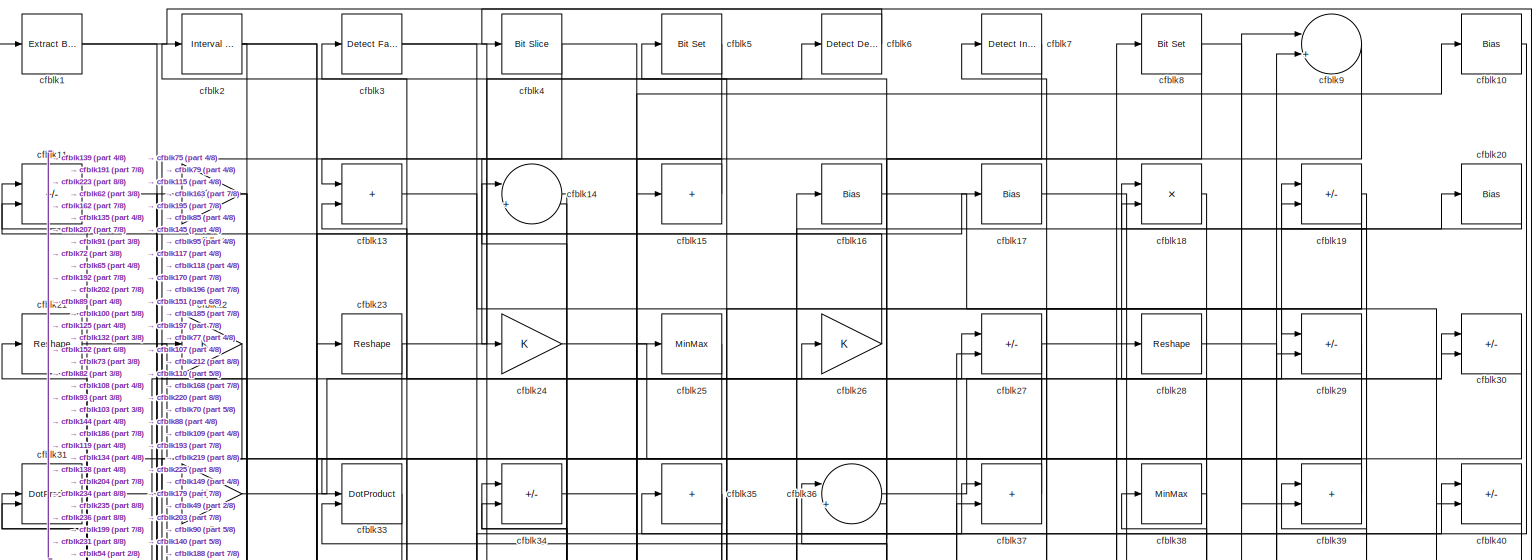
[diagram: root canvas - part 1/8, full width, top band]
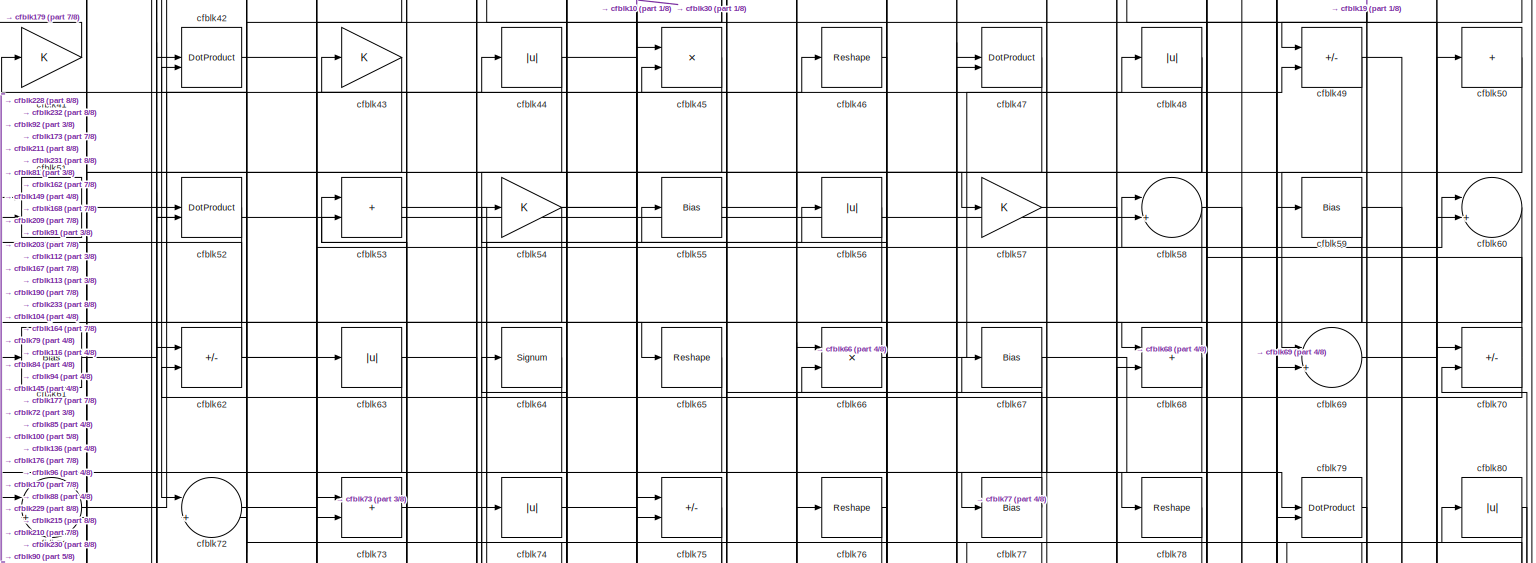
[diagram: root canvas - part 2/8, full width, top band]
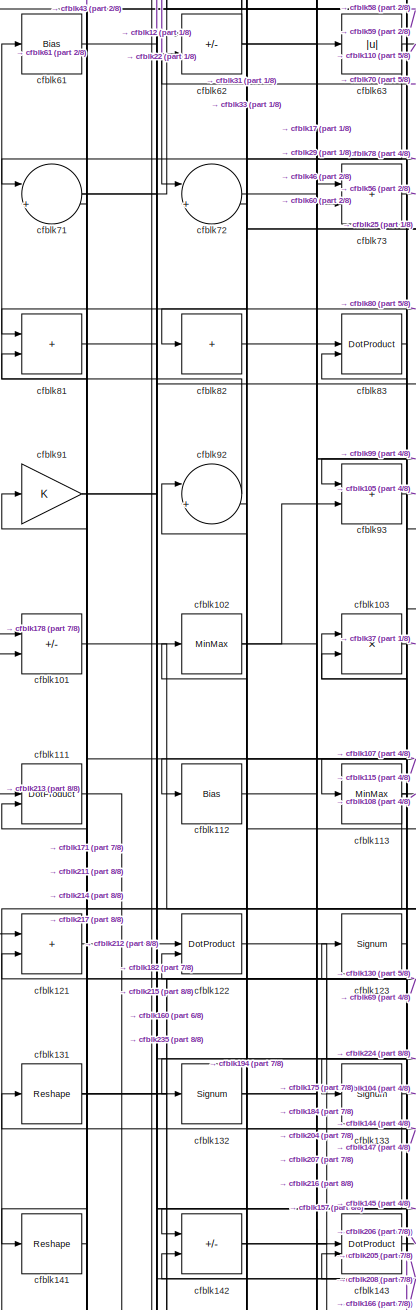
[diagram: root canvas - part 3/8, middle left region]
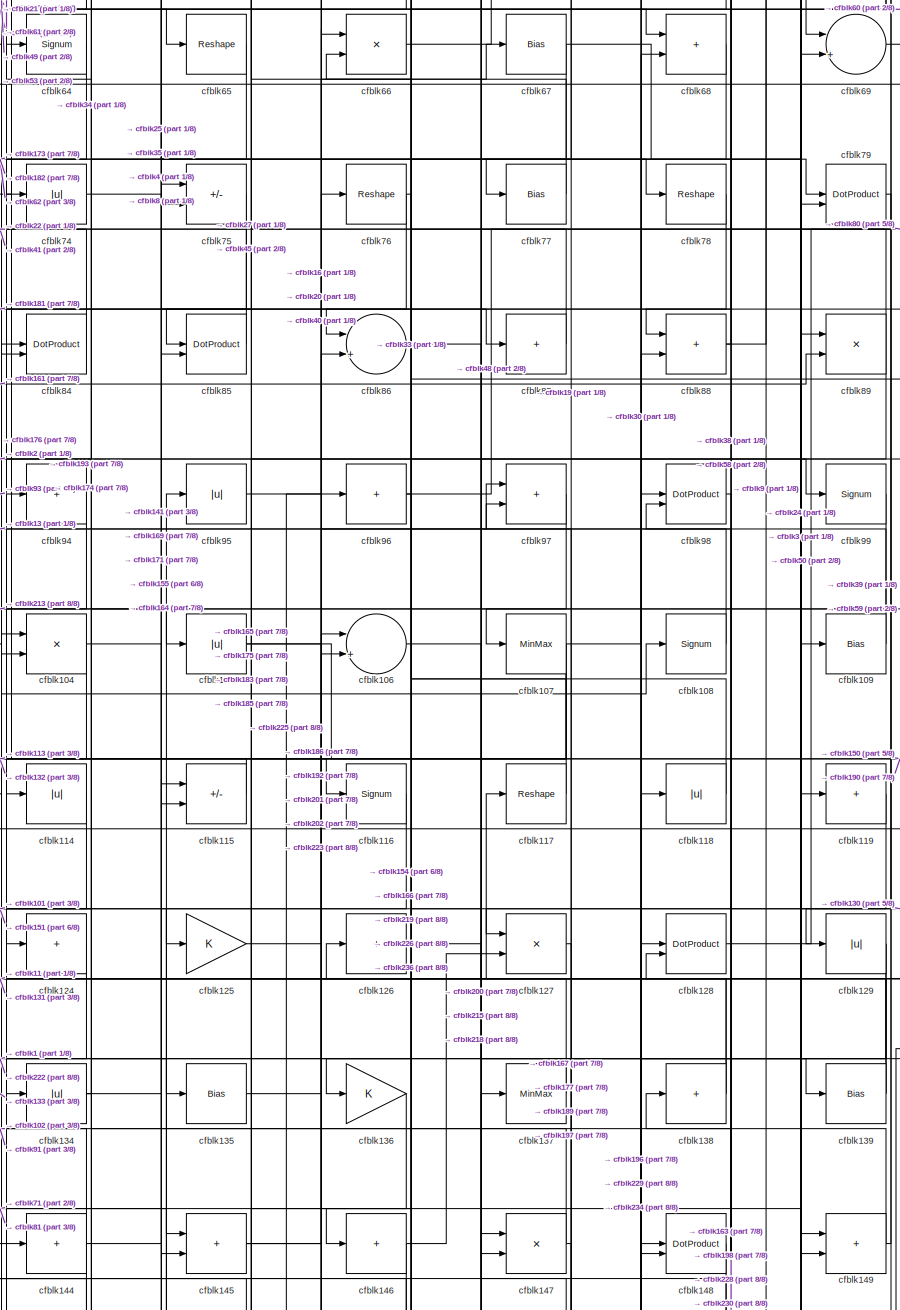
[diagram: root canvas - part 4/8, central region]
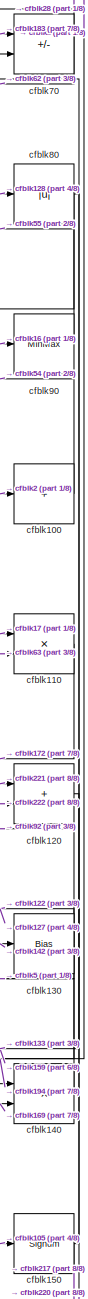
[diagram: root canvas - part 5/8, middle right region]
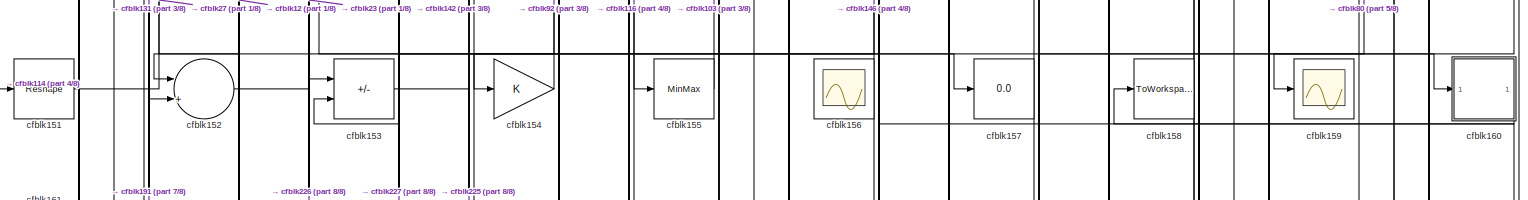
[diagram: root canvas - part 6/8, full width, middle band]
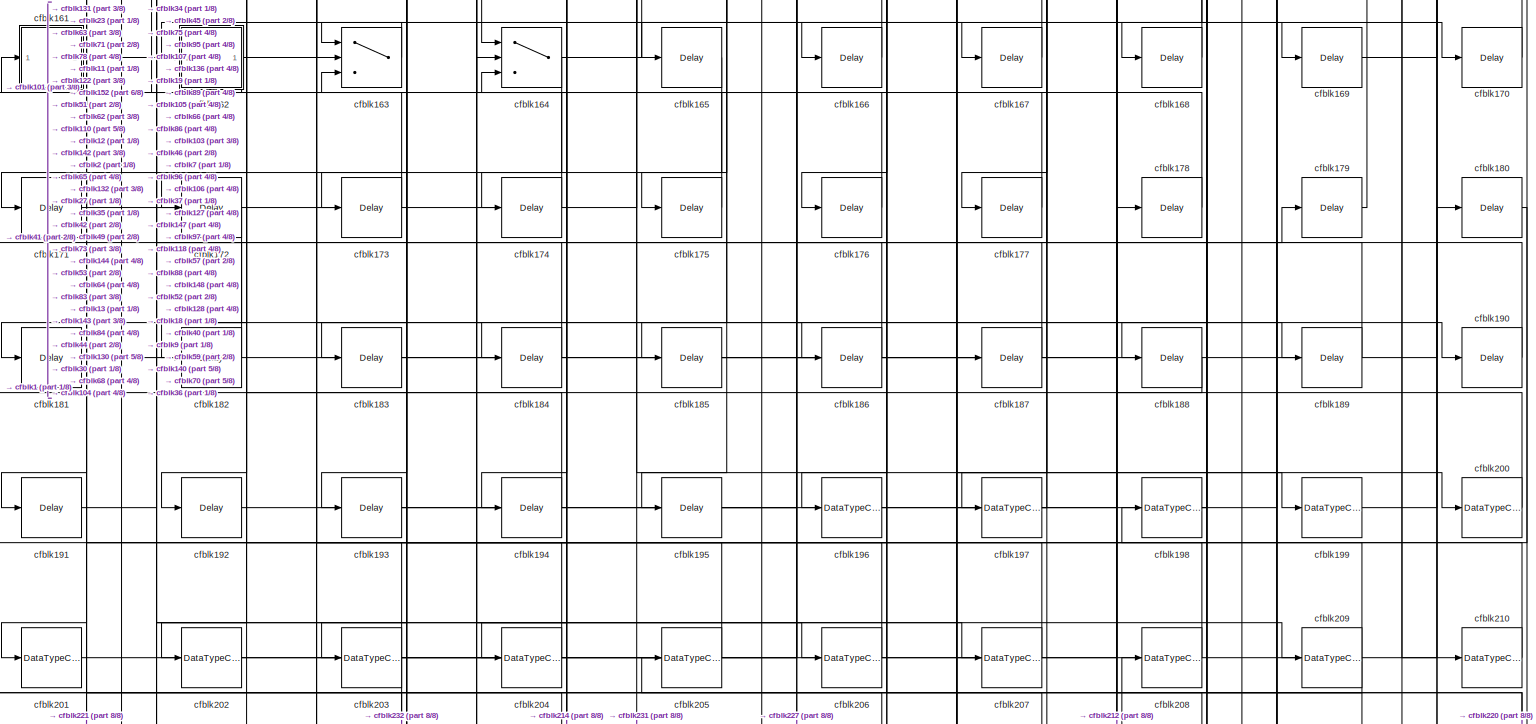
[diagram: root canvas - part 7/8, full width, bottom band]
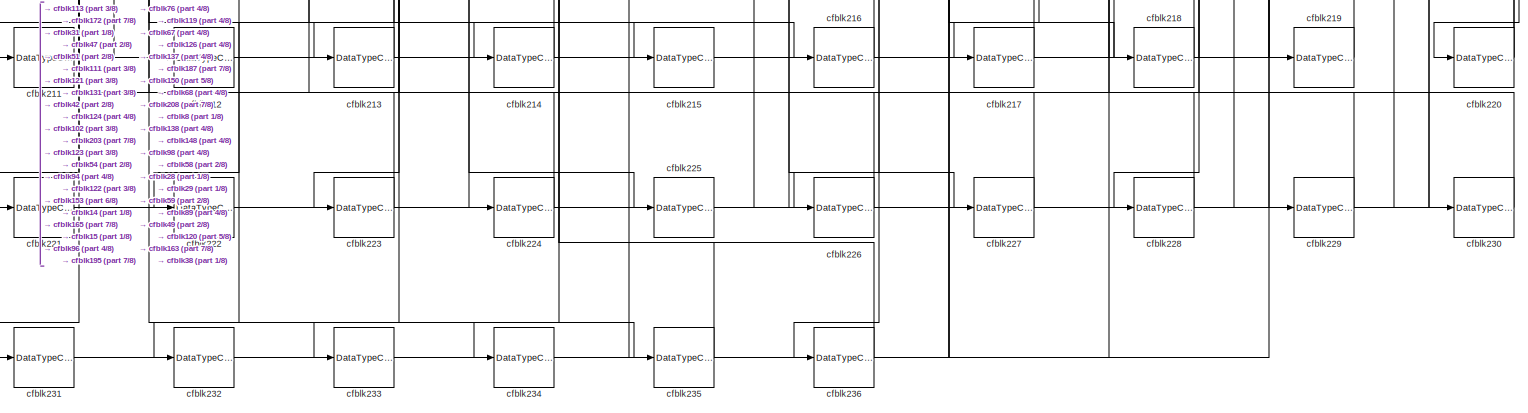
[diagram: root canvas - part 8/8, full width, bottom band]
MODEL slx_cafb1818231c
KIND model
CONFIG AbsTol = auto
CONFIG EnableMultiTasking = off
CONFIG FixedStep = auto
CONFIG MaxStep = auto
CONFIG MinStep = auto
CONFIG RelTol = 1e-3
CONFIG SampleTimeConstraint = Unconstrained
CONFIG SolverName = VariableStepAuto
CONFIG StartTime = 0.0
CONFIG StopTime = 10.0
BLOCK [Reference] cfblk1  REF=simulink/Logic and Bit
Operations/Extract Bits
  LibrarySourceBlock = hdlsllib/Logic and Bit\nOperations/Extract Bits
  SourceBlock = simulink/Logic and Bit\nOperations/Extract Bits
  SourceType = Extract Bits
BLOCK [Bias] cfblk10
  Bias = 0.0
  SaturateOnIntegerOverflow = off
BLOCK [Sum] cfblk100
  IconShape = rectangular
  Inputs = +
BLOCK [Sum] cfblk101
  IconShape = rectangular
  Inputs = +-
BLOCK [MinMax] cfblk102
BLOCK [Product] cfblk103
  Inputs = */
  RndMeth = Zero
  SaturateOnIntegerOverflow = on
BLOCK [Product] cfblk104
  Inputs = */
  RndMeth = Zero
  SaturateOnIntegerOverflow = on
BLOCK [Abs] cfblk105
  SaturateOnIntegerOverflow = off
BLOCK [Sum] cfblk106
  Inputs = |++
BLOCK [MinMax] cfblk107
BLOCK [Signum] cfblk108
BLOCK [Bias] cfblk109
  Bias = 0.0
  SaturateOnIntegerOverflow = off
BLOCK [Sum] cfblk11
  IconShape = rectangular
  Inputs = +-
BLOCK [Product] cfblk110
  Inputs = */
  RndMeth = Zero
  SaturateOnIntegerOverflow = on
BLOCK [DotProduct] cfblk111
  OutDataTypeStr = Inherit: Inherit via internal rule
BLOCK [Bias] cfblk112
  Bias = 0.0
  SaturateOnIntegerOverflow = off
BLOCK [MinMax] cfblk113
BLOCK [Abs] cfblk114
  SaturateOnIntegerOverflow = off
BLOCK [Sum] cfblk115
  IconShape = rectangular
  Inputs = +-
BLOCK [Signum] cfblk116
BLOCK [Reshape] cfblk117
BLOCK [Abs] cfblk118
  SaturateOnIntegerOverflow = off
BLOCK [Sum] cfblk119
  IconShape = rectangular
  Inputs = +
BLOCK [Gain] cfblk12
BLOCK [Sum] cfblk120
  IconShape = rectangular
BLOCK [Sum] cfblk121
  IconShape = rectangular
BLOCK [DotProduct] cfblk122
  OutDataTypeStr = Inherit: Inherit via internal rule
BLOCK [Signum] cfblk123
BLOCK [Sum] cfblk124
  IconShape = rectangular
  Inputs = +
BLOCK [Gain] cfblk125
BLOCK [Sum] cfblk126
  IconShape = rectangular
  Inputs = +
BLOCK [Product] cfblk127
  Inputs = */
  RndMeth = Zero
  SaturateOnIntegerOverflow = on
BLOCK [DotProduct] cfblk128
  OutDataTypeStr = Inherit: Inherit via internal rule
BLOCK [Abs] cfblk129
  SaturateOnIntegerOverflow = off
BLOCK [Sum] cfblk13
  IconShape = rectangular
BLOCK [Bias] cfblk130
  Bias = 0.0
  SaturateOnIntegerOverflow = off
BLOCK [Reshape] cfblk131
BLOCK [Signum] cfblk132
BLOCK [Signum] cfblk133
BLOCK [Abs] cfblk134
  SaturateOnIntegerOverflow = off
BLOCK [Bias] cfblk135
  Bias = 0.0
  SaturateOnIntegerOverflow = off
BLOCK [Gain] cfblk136
BLOCK [MinMax] cfblk137
BLOCK [Sum] cfblk138
  IconShape = rectangular
  Inputs = +
BLOCK [Bias] cfblk139
  Bias = 0.0
  SaturateOnIntegerOverflow = off
BLOCK [Sum] cfblk14
  Inputs = |++
BLOCK [Product] cfblk140
  Inputs = */
  RndMeth = Zero
  SaturateOnIntegerOverflow = on
BLOCK [Reshape] cfblk141
BLOCK [Sum] cfblk142
  IconShape = rectangular
  Inputs = +-
BLOCK [DotProduct] cfblk143
  OutDataTypeStr = Inherit: Inherit via internal rule
BLOCK [Sum] cfblk144
  IconShape = rectangular
  Inputs = +
BLOCK [Sum] cfblk145
  IconShape = rectangular
BLOCK [Sum] cfblk146
  IconShape = rectangular
  Inputs = +
BLOCK [Product] cfblk147
  Inputs = */
  RndMeth = Zero
  SaturateOnIntegerOverflow = on
BLOCK [DotProduct] cfblk148
  OutDataTypeStr = Inherit: Inherit via internal rule
BLOCK [Sum] cfblk149
  IconShape = rectangular
BLOCK [Sum] cfblk15
  IconShape = rectangular
  Inputs = +
BLOCK [Signum] cfblk150
BLOCK [Reshape] cfblk151
BLOCK [Sum] cfblk152
  Inputs = |++
BLOCK [Sum] cfblk153
  IconShape = rectangular
  Inputs = +-
BLOCK [Gain] cfblk154
BLOCK [MinMax] cfblk155
BLOCK [Scope] cfblk156
  Floating = on
  NumInputPorts = 1
  ScopeSpecificationString = Simulink.scopes.TimeScopeBlockCfg('CurrentConfiguration', extmgr.ConfigurationSet(extmgr.Configuration('Core','General UI',true,'FigureColor',[0.156862745098039 0.156862745098039 0.156862745098039]),extmgr.Configuration('Core','Source UI',true),extmgr.Configuration('Sources','WiredSimulink',true,'DataLoggingVariableName','ScopeData1','DataLoggingSaveFormat','StructureWithTime','DataLoggingLimitDat...<+2713ch>
BLOCK [Display] cfblk157
  Decimation = 1
BLOCK [ToWorkspace] cfblk158
  MaxDataPoints = inf
  SampleTime = -1
  SaveFormat = Timeseries
  VariableName = simout
BLOCK [Scope] cfblk159
  Floating = off
  NumInputPorts = 1
  ScopeSpecificationString = Simulink.scopes.TimeScopeBlockCfg('CurrentConfiguration', extmgr.ConfigurationSet(extmgr.Configuration('Core','General UI',true),extmgr.Configuration('Core','Source UI',true),extmgr.Configuration('Sources','WiredSimulink',true,'DataLoggingVariableName','ScopeData2','DataLoggingSaveFormat','Array','DataLoggingLimitDataPoints',true,'DataLoggingDecimation','1'),extmgr.Configuration('Visuals','Time Do...<+868ch>
BLOCK [Bias] cfblk16
  Bias = 0.0
  SaturateOnIntegerOverflow = off
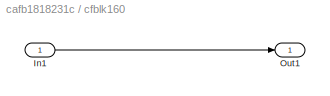
BLOCK [SubSystem] cfblk160
  LibrarySourceBlock = hdlsllib/Ports &\nSubsystems/Subsystem
BLOCK [Inport] cfblk160/In1
BLOCK [Outport] cfblk160/Out1
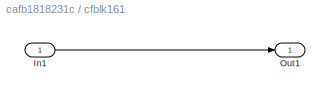
BLOCK [SubSystem] cfblk161
  LibrarySourceBlock = hdlsllib/Ports &\nSubsystems/Subsystem
BLOCK [Inport] cfblk161/In1
BLOCK [Outport] cfblk161/Out1
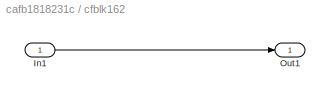
BLOCK [SubSystem] cfblk162
  LibrarySourceBlock = hdlsllib/Ports &\nSubsystems/Subsystem
BLOCK [Inport] cfblk162/In1
BLOCK [Outport] cfblk162/Out1
BLOCK [Switch] cfblk163
  InputSameDT = off
  SaturateOnIntegerOverflow = off
BLOCK [Switch] cfblk164
  InputSameDT = off
  SaturateOnIntegerOverflow = off
BLOCK [Delay] cfblk165
  InputPortMap = u0
  SampleTime = 1
BLOCK [Delay] cfblk166
  InputPortMap = u0
  SampleTime = 1
BLOCK [Delay] cfblk167
  InputPortMap = u0
  SampleTime = 1
BLOCK [Delay] cfblk168
  InputPortMap = u0
  SampleTime = 1
BLOCK [Delay] cfblk169
  InputPortMap = u0
  SampleTime = 1
BLOCK [Bias] cfblk17
  Bias = 0.0
  SaturateOnIntegerOverflow = off
BLOCK [Delay] cfblk170
  InputPortMap = u0
  SampleTime = 1
BLOCK [Delay] cfblk171
  InputPortMap = u0
  SampleTime = 1
BLOCK [Delay] cfblk172
  InputPortMap = u0
  SampleTime = 1
BLOCK [Delay] cfblk173
  InputPortMap = u0
  SampleTime = 1
BLOCK [Delay] cfblk174
  InputPortMap = u0
  SampleTime = 1
BLOCK [Delay] cfblk175
  InputPortMap = u0
  SampleTime = 1
BLOCK [Delay] cfblk176
  InputPortMap = u0
  SampleTime = 1
BLOCK [Delay] cfblk177
  InputPortMap = u0
  SampleTime = 1
BLOCK [Delay] cfblk178
  InputPortMap = u0
  SampleTime = 1
BLOCK [Delay] cfblk179
  InputPortMap = u0
  SampleTime = 1
BLOCK [Product] cfblk18
  Inputs = */
  RndMeth = Zero
  SaturateOnIntegerOverflow = on
BLOCK [Delay] cfblk180
  InputPortMap = u0
  SampleTime = 1
BLOCK [Delay] cfblk181
  InputPortMap = u0
  SampleTime = 1
BLOCK [Delay] cfblk182
  InputPortMap = u0
  SampleTime = 1
BLOCK [Delay] cfblk183
  InputPortMap = u0
  SampleTime = 1
BLOCK [Delay] cfblk184
  InputPortMap = u0
  SampleTime = 1
BLOCK [Delay] cfblk185
  InputPortMap = u0
  SampleTime = 1
BLOCK [Delay] cfblk186
  InputPortMap = u0
  SampleTime = 1
BLOCK [Delay] cfblk187
  InputPortMap = u0
  SampleTime = 1
BLOCK [Delay] cfblk188
  InputPortMap = u0
  SampleTime = 1
BLOCK [Delay] cfblk189
  InputPortMap = u0
  SampleTime = 1
BLOCK [Sum] cfblk19
  IconShape = rectangular
  Inputs = +-
BLOCK [Delay] cfblk190
  InputPortMap = u0
  SampleTime = 1
BLOCK [Delay] cfblk191
  InputPortMap = u0
  SampleTime = 1
BLOCK [Delay] cfblk192
  InputPortMap = u0
  SampleTime = 1
BLOCK [Delay] cfblk193
  InputPortMap = u0
  SampleTime = 1
BLOCK [Delay] cfblk194
  InputPortMap = u0
  SampleTime = 1
BLOCK [Delay] cfblk195
  InputPortMap = u0
  SampleTime = 1
BLOCK [DataTypeConversion] cfblk196
  OutDataTypeStr = uint8
  RndMeth = Floor
  SaturateOnIntegerOverflow = off
BLOCK [DataTypeConversion] cfblk197
  OutDataTypeStr = uint8
  RndMeth = Floor
  SaturateOnIntegerOverflow = off
BLOCK [DataTypeConversion] cfblk198
  OutDataTypeStr = uint8
  RndMeth = Floor
  SaturateOnIntegerOverflow = off
BLOCK [DataTypeConversion] cfblk199
  OutDataTypeStr = uint8
  RndMeth = Floor
  SaturateOnIntegerOverflow = off
BLOCK [Reference] cfblk2  REF=hdlsllib/Logic and Bit
Operations/Interval Test
  SourceBlock = hdlsllib/Logic and Bit\nOperations/Interval Test
  SourceType = Interval Test
BLOCK [Bias] cfblk20
  Bias = 0.0
  SaturateOnIntegerOverflow = off
BLOCK [DataTypeConversion] cfblk200
  OutDataTypeStr = uint8
  RndMeth = Floor
  SaturateOnIntegerOverflow = off
BLOCK [DataTypeConversion] cfblk201
  OutDataTypeStr = uint8
  RndMeth = Floor
  SaturateOnIntegerOverflow = off
BLOCK [DataTypeConversion] cfblk202
  OutDataTypeStr = uint8
  RndMeth = Floor
  SaturateOnIntegerOverflow = off
BLOCK [DataTypeConversion] cfblk203
  RndMeth = Floor
  SaturateOnIntegerOverflow = off
BLOCK [DataTypeConversion] cfblk204
  OutDataTypeStr = uint8
  RndMeth = Floor
  SaturateOnIntegerOverflow = off
BLOCK [DataTypeConversion] cfblk205
  OutDataTypeStr = uint8
  RndMeth = Floor
  SaturateOnIntegerOverflow = off
BLOCK [DataTypeConversion] cfblk206
  RndMeth = Floor
  SaturateOnIntegerOverflow = off
BLOCK [DataTypeConversion] cfblk207
  OutDataTypeStr = uint8
  RndMeth = Floor
  SaturateOnIntegerOverflow = off
BLOCK [DataTypeConversion] cfblk208
  OutDataTypeStr = uint8
  RndMeth = Floor
  SaturateOnIntegerOverflow = off
BLOCK [DataTypeConversion] cfblk209
  RndMeth = Floor
  SaturateOnIntegerOverflow = off
BLOCK [Reshape] cfblk21
BLOCK [DataTypeConversion] cfblk210
  OutDataTypeStr = uint8
  RndMeth = Floor
  SaturateOnIntegerOverflow = off
BLOCK [DataTypeConversion] cfblk211
  OutDataTypeStr = uint8
  RndMeth = Floor
  SaturateOnIntegerOverflow = off
BLOCK [DataTypeConversion] cfblk212
  RndMeth = Floor
  SaturateOnIntegerOverflow = off
BLOCK [DataTypeConversion] cfblk213
  OutDataTypeStr = uint8
  RndMeth = Floor
  SaturateOnIntegerOverflow = off
BLOCK [DataTypeConversion] cfblk214
  OutDataTypeStr = uint8
  RndMeth = Floor
  SaturateOnIntegerOverflow = off
BLOCK [DataTypeConversion] cfblk215
  RndMeth = Floor
  SaturateOnIntegerOverflow = off
BLOCK [DataTypeConversion] cfblk216
  OutDataTypeStr = uint8
  RndMeth = Floor
  SaturateOnIntegerOverflow = off
BLOCK [DataTypeConversion] cfblk217
  OutDataTypeStr = uint8
  RndMeth = Floor
  SaturateOnIntegerOverflow = off
BLOCK [DataTypeConversion] cfblk218
  RndMeth = Floor
  SaturateOnIntegerOverflow = off
BLOCK [DataTypeConversion] cfblk219
  OutDataTypeStr = uint8
  RndMeth = Floor
  SaturateOnIntegerOverflow = off
BLOCK [Gain] cfblk22
BLOCK [DataTypeConversion] cfblk220
  RndMeth = Floor
  SaturateOnIntegerOverflow = off
BLOCK [DataTypeConversion] cfblk221
  OutDataTypeStr = uint8
  RndMeth = Floor
  SaturateOnIntegerOverflow = off
BLOCK [DataTypeConversion] cfblk222
  OutDataTypeStr = uint8
  RndMeth = Floor
  SaturateOnIntegerOverflow = off
BLOCK [DataTypeConversion] cfblk223
  RndMeth = Floor
  SaturateOnIntegerOverflow = off
BLOCK [DataTypeConversion] cfblk224
  OutDataTypeStr = uint8
  RndMeth = Floor
  SaturateOnIntegerOverflow = off
BLOCK [DataTypeConversion] cfblk225
  RndMeth = Floor
  SaturateOnIntegerOverflow = off
BLOCK [DataTypeConversion] cfblk226
  OutDataTypeStr = uint8
  RndMeth = Floor
  SaturateOnIntegerOverflow = off
BLOCK [DataTypeConversion] cfblk227
  OutDataTypeStr = uint8
  RndMeth = Floor
  SaturateOnIntegerOverflow = off
BLOCK [DataTypeConversion] cfblk228
  OutDataTypeStr = uint8
  RndMeth = Floor
  SaturateOnIntegerOverflow = off
BLOCK [DataTypeConversion] cfblk229
  OutDataTypeStr = uint8
  RndMeth = Floor
  SaturateOnIntegerOverflow = off
BLOCK [Reshape] cfblk23
BLOCK [DataTypeConversion] cfblk230
  OutDataTypeStr = uint8
  RndMeth = Floor
  SaturateOnIntegerOverflow = off
BLOCK [DataTypeConversion] cfblk231
  RndMeth = Floor
  SaturateOnIntegerOverflow = off
BLOCK [DataTypeConversion] cfblk232
  OutDataTypeStr = uint8
  RndMeth = Floor
  SaturateOnIntegerOverflow = off
BLOCK [DataTypeConversion] cfblk233
  OutDataTypeStr = uint8
  RndMeth = Floor
  SaturateOnIntegerOverflow = off
BLOCK [DataTypeConversion] cfblk234
  RndMeth = Floor
  SaturateOnIntegerOverflow = off
BLOCK [DataTypeConversion] cfblk235
  OutDataTypeStr = uint8
  RndMeth = Floor
  SaturateOnIntegerOverflow = off
BLOCK [DataTypeConversion] cfblk236
  OutDataTypeStr = uint8
  RndMeth = Floor
  SaturateOnIntegerOverflow = off
BLOCK [Gain] cfblk24
BLOCK [MinMax] cfblk25
BLOCK [Gain] cfblk26
BLOCK [Sum] cfblk27
  IconShape = rectangular
  Inputs = +-
BLOCK [Reshape] cfblk28
BLOCK [Sum] cfblk29
  IconShape = rectangular
  Inputs = +-
BLOCK [Reference] cfblk3  REF=hdlsllib/Logic and Bit
Operations/Detect Fall
Nonpositive
  SourceBlock = hdlsllib/Logic and Bit\nOperations/Detect Fall\nNonpositive
  SourceType = Detect Fall Nonpositive
BLOCK [Sum] cfblk30
  IconShape = rectangular
  Inputs = +-
BLOCK [DotProduct] cfblk31
  OutDataTypeStr = Inherit: Inherit via internal rule
BLOCK [Gain] cfblk32
BLOCK [DotProduct] cfblk33
  OutDataTypeStr = Inherit: Inherit via internal rule
BLOCK [Sum] cfblk34
  IconShape = rectangular
  Inputs = +-
BLOCK [Sum] cfblk35
  IconShape = rectangular
  Inputs = +
BLOCK [Sum] cfblk36
  Inputs = |++
BLOCK [Sum] cfblk37
  IconShape = rectangular
BLOCK [MinMax] cfblk38
BLOCK [Sum] cfblk39
  IconShape = rectangular
BLOCK [Reference] cfblk4  REF=hdlsllib/Logic and Bit
Operations/Bit Slice
  SourceBlock = hdlsllib/Logic and Bit\nOperations/Bit Slice
  SourceType = Bit Slice
BLOCK [Sum] cfblk40
  IconShape = rectangular
  Inputs = +-
BLOCK [Gain] cfblk41
BLOCK [DotProduct] cfblk42
  OutDataTypeStr = Inherit: Inherit via internal rule
BLOCK [Gain] cfblk43
BLOCK [Abs] cfblk44
  SaturateOnIntegerOverflow = off
BLOCK [Product] cfblk45
  Inputs = */
  RndMeth = Zero
  SaturateOnIntegerOverflow = on
BLOCK [Reshape] cfblk46
BLOCK [DotProduct] cfblk47
  OutDataTypeStr = Inherit: Inherit via internal rule
BLOCK [Abs] cfblk48
  SaturateOnIntegerOverflow = off
BLOCK [Sum] cfblk49
  IconShape = rectangular
  Inputs = +-
BLOCK [Reference] cfblk5  REF=simulink/Logic and Bit
Operations/Bit Set
  LibrarySourceBlock = hdlsllib/Logic and Bit\nOperations/Bit Set
  SourceBlock = simulink/Logic and Bit\nOperations/Bit Set
  SourceType = Bit Set
BLOCK [Sum] cfblk50
  IconShape = rectangular
  Inputs = +
BLOCK [Product] cfblk51
  Inputs = */
  RndMeth = Zero
  SaturateOnIntegerOverflow = on
BLOCK [DotProduct] cfblk52
  OutDataTypeStr = Inherit: Inherit via internal rule
BLOCK [Sum] cfblk53
  IconShape = rectangular
BLOCK [Gain] cfblk54
BLOCK [Bias] cfblk55
  Bias = 0.0
  SaturateOnIntegerOverflow = off
BLOCK [Abs] cfblk56
  SaturateOnIntegerOverflow = off
BLOCK [Gain] cfblk57
BLOCK [Sum] cfblk58
  Inputs = |++
BLOCK [Bias] cfblk59
  Bias = 0.0
  SaturateOnIntegerOverflow = off
BLOCK [Reference] cfblk6  REF=simulink/Logic and Bit
Operations/Detect
Decrease
  LibrarySourceBlock = hdlsllib/Logic and Bit\nOperations/Detect\nDecrease
  SourceBlock = simulink/Logic and Bit\nOperations/Detect\nDecrease
  SourceType = Detect Decrease
BLOCK [Sum] cfblk60
  Inputs = |++
BLOCK [Bias] cfblk61
  Bias = 0.0
  SaturateOnIntegerOverflow = off
BLOCK [Sum] cfblk62
  IconShape = rectangular
  Inputs = +-
BLOCK [Abs] cfblk63
  SaturateOnIntegerOverflow = off
BLOCK [Signum] cfblk64
BLOCK [Reshape] cfblk65
BLOCK [Product] cfblk66
  Inputs = */
  RndMeth = Zero
  SaturateOnIntegerOverflow = on
BLOCK [Bias] cfblk67
  Bias = 0.0
  SaturateOnIntegerOverflow = off
BLOCK [Sum] cfblk68
  IconShape = rectangular
BLOCK [Sum] cfblk69
  Inputs = |++
BLOCK [Reference] cfblk7  REF=simulink/Logic and Bit
Operations/Detect
Increase
  LibrarySourceBlock = hdlsllib/Logic and Bit\nOperations/Detect\nIncrease
  SourceBlock = simulink/Logic and Bit\nOperations/Detect\nIncrease
  SourceType = Detect Increase
BLOCK [Sum] cfblk70
  IconShape = rectangular
  Inputs = +-
BLOCK [Sum] cfblk71
  Inputs = |++
BLOCK [Sum] cfblk72
  Inputs = |++
BLOCK [Sum] cfblk73
  IconShape = rectangular
BLOCK [Abs] cfblk74
  SaturateOnIntegerOverflow = off
BLOCK [Sum] cfblk75
  IconShape = rectangular
  Inputs = +-
BLOCK [Reshape] cfblk76
BLOCK [Bias] cfblk77
  Bias = 0.0
  SaturateOnIntegerOverflow = off
BLOCK [Reshape] cfblk78
BLOCK [DotProduct] cfblk79
  OutDataTypeStr = Inherit: Inherit via internal rule
BLOCK [Reference] cfblk8  REF=simulink/Logic and Bit
Operations/Bit Set
  LibrarySourceBlock = hdlsllib/Logic and Bit\nOperations/Bit Set
  SourceBlock = simulink/Logic and Bit\nOperations/Bit Set
  SourceType = Bit Set
BLOCK [Abs] cfblk80
  SaturateOnIntegerOverflow = off
BLOCK [Sum] cfblk81
  IconShape = rectangular
BLOCK [Sum] cfblk82
  IconShape = rectangular
  Inputs = +
BLOCK [DotProduct] cfblk83
  OutDataTypeStr = Inherit: Inherit via internal rule
BLOCK [DotProduct] cfblk84
  OutDataTypeStr = Inherit: Inherit via internal rule
BLOCK [DotProduct] cfblk85
  OutDataTypeStr = Inherit: Inherit via internal rule
BLOCK [Sum] cfblk86
  Inputs = |++
BLOCK [Sum] cfblk87
  IconShape = rectangular
  Inputs = +
BLOCK [Sum] cfblk88
  IconShape = rectangular
BLOCK [Product] cfblk89
  Inputs = */
  RndMeth = Zero
  SaturateOnIntegerOverflow = on
BLOCK [Sum] cfblk9
  Inputs = |++
BLOCK [MinMax] cfblk90
BLOCK [Gain] cfblk91
BLOCK [Sum] cfblk92
  Inputs = |++
BLOCK [Sum] cfblk93
  IconShape = rectangular
BLOCK [Sum] cfblk94
  IconShape = rectangular
  Inputs = +
BLOCK [Abs] cfblk95
  SaturateOnIntegerOverflow = off
BLOCK [Sum] cfblk96
  IconShape = rectangular
  Inputs = +
BLOCK [Sum] cfblk97
  IconShape = rectangular
BLOCK [DotProduct] cfblk98
  OutDataTypeStr = Inherit: Inherit via internal rule
BLOCK [Signum] cfblk99
LINE cfblk100:1 -> cfblk54:1
LINE cfblk101:1 -> cfblk147:2
NET cfblk102:1 -> cfblk216:1, cfblk93:2
LINE cfblk103:1 -> cfblk37:1
NET cfblk104:1 -> cfblk141:1, cfblk169:1
NET cfblk105:1 -> cfblk150:1, cfblk190:1
LINE cfblk106:1 -> cfblk200:1
NET cfblk107:1 -> cfblk132:1, cfblk183:1, cfblk185:1, cfblk30:2
LINE cfblk108:1 -> cfblk13:2
LINE cfblk109:1 -> cfblk74:1
LINE cfblk10:1 -> cfblk35:1
LINE cfblk110:1 -> cfblk172:1
LINE cfblk111:1 -> cfblk212:1
LINE cfblk112:1 -> cfblk60:1
NET cfblk113:1 -> cfblk108:1, cfblk211:1, cfblk43:1
LINE cfblk114:1 -> cfblk151:1
LINE cfblk115:1 -> cfblk113:1
LINE cfblk116:1 -> cfblk155:1
LINE cfblk117:1 -> cfblk33:2
LINE cfblk118:1 -> cfblk2:1
LINE cfblk119:1 -> cfblk226:1
LINE cfblk11:1 -> cfblk207:1
LINE cfblk120:1 -> cfblk220:1
LINE cfblk121:1 -> cfblk215:1
LINE cfblk122:1 -> cfblk224:1
LINE cfblk123:1 -> cfblk223:1
LINE cfblk124:1 -> cfblk222:1
LINE cfblk125:1 -> cfblk97:1
LINE cfblk126:1 -> cfblk218:1
LINE cfblk127:1 -> cfblk177:1
LINE cfblk128:1 -> cfblk80:1
NET cfblk129:1 -> cfblk134:1, cfblk148:2
NET cfblk12:1 -> cfblk152:1, cfblk192:1
NET cfblk130:1 -> cfblk122:2, cfblk127:1, cfblk194:1, cfblk92:2
NET cfblk131:1 -> cfblk160:1, cfblk235:1, cfblk69:2
NET cfblk132:1 -> cfblk17:1, cfblk184:1
NET cfblk133:1 -> cfblk104:1, cfblk142:1
NET cfblk134:1 -> cfblk115:1, cfblk34:2
LINE cfblk135:1 -> cfblk40:1
LINE cfblk136:1 -> cfblk165:1
LINE cfblk137:1 -> cfblk114:1
NET cfblk138:1 -> cfblk117:1, cfblk34:1
NET cfblk139:1 -> cfblk11:2, cfblk21:1
LINE cfblk13:1 -> cfblk186:1
LINE cfblk140:1 -> cfblk5:1
LINE cfblk141:1 -> cfblk81:2
NET cfblk142:1 -> cfblk130:1, cfblk157:1
LINE cfblk143:1 -> cfblk206:1
NET cfblk144:1 -> cfblk193:1, cfblk25:1, cfblk91:1
NET cfblk145:1 -> cfblk16:1, cfblk67:1
NET cfblk146:1 -> cfblk127:2, cfblk154:1
NET cfblk147:1 -> cfblk102:1, cfblk197:1
LINE cfblk148:1 -> cfblk163:1
NET cfblk149:1 -> cfblk39:1, cfblk64:1
LINE cfblk14:1 -> cfblk234:1
NET cfblk150:1 -> cfblk217:1, cfblk70:2
LINE cfblk151:1 -> cfblk27:2
LINE cfblk152:1 -> cfblk23:1
LINE cfblk153:1 -> cfblk225:1
LINE cfblk154:1 -> cfblk92:1
LINE cfblk155:1 -> cfblk103:1
LINE cfblk15:1 -> cfblk13:1
LINE cfblk160/In1:1 -> cfblk160/Out1:1
LINE cfblk160:1 -> cfblk158:1
LINE cfblk161/In1:1 -> cfblk161/Out1:1
NET cfblk161:1 -> cfblk189:1, cfblk89:2
LINE cfblk162/In1:1 -> cfblk162/Out1:1
NET cfblk162:1 -> cfblk27:1, cfblk49:2
LINE cfblk163:1 -> cfblk162:1
NET cfblk164:1 -> cfblk201:1, cfblk95:1
LINE cfblk165:1 -> cfblk214:1
LINE cfblk166:1 -> cfblk103:2
LINE cfblk167:1 -> cfblk147:1
LINE cfblk168:1 -> cfblk52:1
LINE cfblk169:1 -> cfblk140:2
LINE cfblk16:1 -> cfblk90:1
LINE cfblk170:1 -> cfblk36:1
LINE cfblk171:1 -> cfblk75:1
LINE cfblk172:1 -> cfblk221:1
LINE cfblk173:1 -> cfblk71:2
LINE cfblk174:1 -> cfblk164:2
LINE cfblk175:1 -> cfblk73:1
LINE cfblk176:1 -> cfblk84:1
LINE cfblk177:1 -> cfblk45:1
LINE cfblk178:1 -> cfblk101:1
LINE cfblk179:1 -> cfblk19:2
LINE cfblk17:1 -> cfblk110:1
LINE cfblk180:1 -> cfblk198:1
LINE cfblk181:1 -> cfblk88:2
LINE cfblk182:1 -> cfblk62:1
LINE cfblk183:1 -> cfblk70:1
LINE cfblk184:1 -> cfblk122:1
LINE cfblk185:1 -> cfblk37:2
LINE cfblk186:1 -> cfblk66:1
LINE cfblk187:1 -> cfblk164:3
LINE cfblk188:1 -> cfblk1:1
LINE cfblk189:1 -> cfblk97:2
LINE cfblk18:1 -> cfblk168:1
LINE cfblk190:1 -> cfblk53:2
LINE cfblk191:1 -> cfblk152:2
LINE cfblk192:1 -> cfblk86:2
LINE cfblk193:1 -> cfblk9:2
LINE cfblk194:1 -> cfblk142:2
LINE cfblk195:1 -> cfblk227:1
LINE cfblk196:1 -> cfblk118:1
LINE cfblk197:1 -> cfblk7:1
LINE cfblk198:1 -> cfblk128:2
LINE cfblk199:1 -> cfblk180:1
NET cfblk19:1 -> cfblk195:1, cfblk49:1, cfblk77:1
NET cfblk1:1 -> cfblk135:1, cfblk140:1
LINE cfblk200:1 -> cfblk128:1
LINE cfblk201:1 -> cfblk106:1
LINE cfblk202:1 -> cfblk106:2
NET cfblk203:1 -> cfblk232:1, cfblk40:2, cfblk42:2
LINE cfblk204:1 -> cfblk83:1
LINE cfblk205:1 -> cfblk83:2
NET cfblk206:1 -> cfblk131:1, cfblk178:1
LINE cfblk207:1 -> cfblk143:1
LINE cfblk208:1 -> cfblk143:2
NET cfblk209:1 -> cfblk161:1, cfblk205:1
LINE cfblk20:1 -> cfblk18:2
LINE cfblk210:1 -> cfblk51:1
LINE cfblk211:1 -> cfblk51:2
NET cfblk212:1 -> cfblk208:1, cfblk8:1
LINE cfblk213:1 -> cfblk111:1
LINE cfblk214:1 -> cfblk111:2
NET cfblk215:1 -> cfblk137:1, cfblk59:1
LINE cfblk216:1 -> cfblk121:1
LINE cfblk217:1 -> cfblk121:2
NET cfblk218:1 -> cfblk138:1, cfblk148:1
LINE cfblk219:1 -> cfblk126:1
LINE cfblk21:1 -> cfblk144:1
NET cfblk220:1 -> cfblk163:3, cfblk38:1
LINE cfblk221:1 -> cfblk120:1
LINE cfblk222:1 -> cfblk120:2
NET cfblk223:1 -> cfblk31:2, cfblk76:1
LINE cfblk224:1 -> cfblk123:1
NET cfblk225:1 -> cfblk29:2, cfblk96:1
LINE cfblk226:1 -> cfblk153:1
LINE cfblk227:1 -> cfblk153:2
LINE cfblk228:1 -> cfblk42:1
LINE cfblk229:1 -> cfblk98:1
LINE cfblk22:1 -> cfblk72:1
LINE cfblk230:1 -> cfblk98:2
NET cfblk231:1 -> cfblk15:1, cfblk187:1
LINE cfblk232:1 -> cfblk47:1
LINE cfblk233:1 -> cfblk47:2
NET cfblk234:1 -> cfblk68:2, cfblk89:1
LINE cfblk235:1 -> cfblk14:1
LINE cfblk236:1 -> cfblk14:2
NET cfblk23:1 -> cfblk191:1, cfblk6:1
LINE cfblk24:1 -> cfblk109:1
LINE cfblk25:1 -> cfblk93:1
LINE cfblk26:1 -> cfblk11:1
NET cfblk27:1 -> cfblk18:1, cfblk85:1
LINE cfblk28:1 -> cfblk219:1
LINE cfblk29:1 -> cfblk73:2
NET cfblk2:1 -> cfblk100:1, cfblk125:1, cfblk202:1
LINE cfblk30:1 -> cfblk204:1
LINE cfblk31:1 -> cfblk65:1
LINE cfblk32:1 -> cfblk26:1
LINE cfblk33:1 -> cfblk82:1
LINE cfblk34:1 -> cfblk199:1
NET cfblk35:1 -> cfblk115:2, cfblk163:2
LINE cfblk36:1 -> cfblk19:1
LINE cfblk37:1 -> cfblk3:1
LINE cfblk38:1 -> cfblk88:1
LINE cfblk39:1 -> cfblk33:1
NET cfblk3:1 -> cfblk119:1, cfblk29:1
LINE cfblk40:1 -> cfblk188:1
LINE cfblk41:1 -> cfblk179:1
LINE cfblk42:1 -> cfblk167:1
LINE cfblk43:1 -> cfblk81:1
NET cfblk44:1 -> cfblk164:1, cfblk79:2
LINE cfblk45:1 -> cfblk52:2
LINE cfblk46:1 -> cfblk176:1
LINE cfblk47:1 -> cfblk231:1
NET cfblk48:1 -> cfblk85:2, cfblk94:1
NET cfblk49:1 -> cfblk104:2, cfblk230:1
NET cfblk4:1 -> cfblk32:1, cfblk79:1
LINE cfblk50:1 -> cfblk69:1
LINE cfblk51:1 -> cfblk209:1
LINE cfblk52:1 -> cfblk71:1
LINE cfblk53:1 -> cfblk116:1
NET cfblk54:1 -> cfblk10:1, cfblk233:1, cfblk30:1
LINE cfblk55:1 -> cfblk57:1
LINE cfblk56:1 -> cfblk101:2
LINE cfblk57:1 -> cfblk170:1
NET cfblk58:1 -> cfblk112:1, cfblk229:1
NET cfblk59:1 -> cfblk145:2, cfblk210:1, cfblk72:2
LINE cfblk5:1 -> cfblk24:1
LINE cfblk60:1 -> cfblk136:1
LINE cfblk61:1 -> cfblk68:1
NET cfblk62:1 -> cfblk31:1, cfblk78:1, cfblk99:1
NET cfblk63:1 -> cfblk110:2, cfblk171:1
LINE cfblk64:1 -> cfblk173:1
LINE cfblk65:1 -> cfblk182:1
LINE cfblk66:1 -> cfblk48:1
NET cfblk67:1 -> cfblk149:1, cfblk236:1
LINE cfblk68:1 -> cfblk174:1
LINE cfblk69:1 -> cfblk60:2
LINE cfblk6:1 -> cfblk4:1
NET cfblk70:1 -> cfblk28:1, cfblk62:2
NET cfblk71:1 -> cfblk149:2, cfblk44:1
LINE cfblk72:1 -> cfblk46:1
LINE cfblk73:1 -> cfblk56:1
LINE cfblk74:1 -> cfblk87:1
LINE cfblk75:1 -> cfblk84:2
NET cfblk76:1 -> cfblk146:1, cfblk86:1
LINE cfblk77:1 -> cfblk45:2
LINE cfblk78:1 -> cfblk181:1
LINE cfblk79:1 -> cfblk129:1
LINE cfblk7:1 -> cfblk196:1
NET cfblk80:1 -> cfblk133:1, cfblk159:1
LINE cfblk81:1 -> cfblk145:1
LINE cfblk82:1 -> cfblk63:1
LINE cfblk83:1 -> cfblk203:1
LINE cfblk84:1 -> cfblk53:1
LINE cfblk85:1 -> cfblk41:1
LINE cfblk86:1 -> cfblk139:1
LINE cfblk87:1 -> cfblk66:2
NET cfblk88:1 -> cfblk58:1, cfblk9:1
NET cfblk89:1 -> cfblk175:1, cfblk22:1
NET cfblk8:1 -> cfblk39:2, cfblk75:2
LINE cfblk90:1 -> cfblk55:1
NET cfblk91:1 -> cfblk12:1, cfblk58:2
LINE cfblk92:1 -> cfblk61:1
LINE cfblk93:1 -> cfblk105:1
LINE cfblk94:1 -> cfblk213:1
LINE cfblk95:1 -> cfblk20:1
NET cfblk96:1 -> cfblk166:1, cfblk50:1
LINE cfblk97:1 -> cfblk124:1
LINE cfblk98:1 -> cfblk228:1
LINE cfblk99:1 -> cfblk107:1
LINE cfblk9:1 -> cfblk36:2
note: NET lines group one-source signal fan-out (src -> all destinations, sorted); 1:1 wires keep LINE
